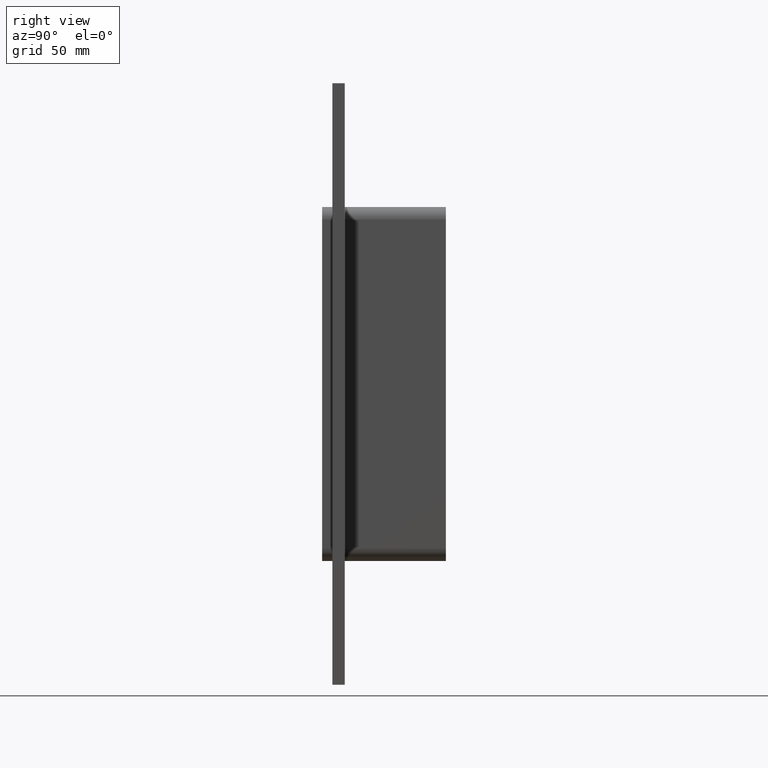
[diagram: clean part render]
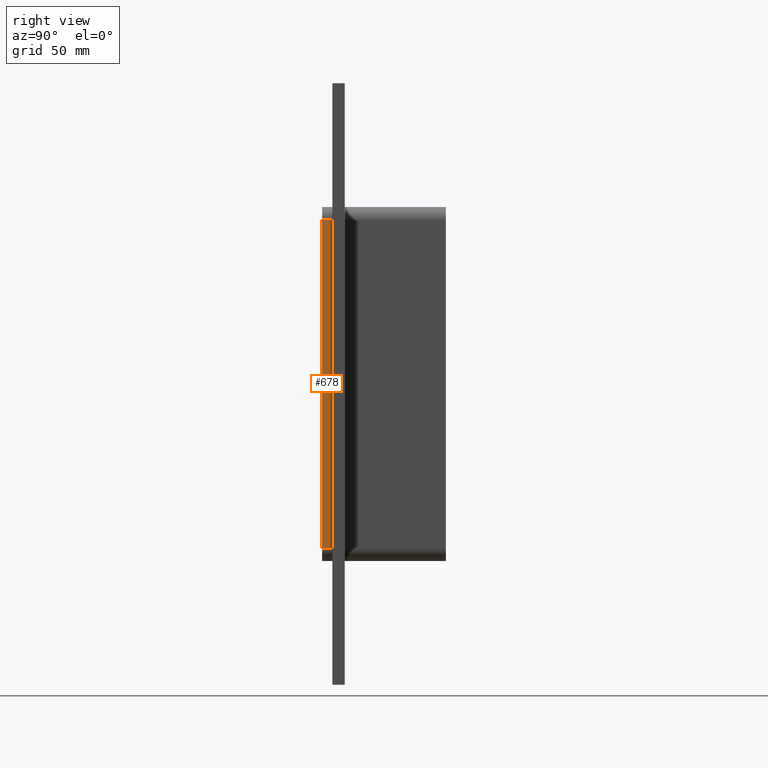
[diagram: same view with one face highlighted and labeled with its STEP entity id]
A machine part, right view. The second image highlights one B-rep face of the part: STEP entity #678.
In plain terms, the highlighted planar face has unit normal (1, 0, 0).
Its self-contained STEP definition (entity closure, byte-faithful):
#217=CARTESIAN_POINT('',(36.25,0.0,79.750000000000014));
#218=VERTEX_POINT('',#217);
#228=CARTESIAN_POINT('',(36.25,0.0,-79.750000000000057));
#229=VERTEX_POINT('',#228);
#230=CARTESIAN_POINT('',(36.25,0.0,-79.750000000000057));
#231=DIRECTION('',(0.0,0.0,1.0));
#232=VECTOR('',#231,159.50000000000006);
#233=LINE('',#230,#232);
#234=EDGE_CURVE('',#229,#218,#233,.T.);
#588=CARTESIAN_POINT('',(36.25,-5.0,-79.750000000000057));
#589=VERTEX_POINT('',#588);
#590=CARTESIAN_POINT('',(36.25,-5.0,-79.750000000000057));
#591=DIRECTION('',(0.0,1.0,0.0));
#592=VECTOR('',#591,5.0);
#593=LINE('',#590,#592);
#594=EDGE_CURVE('',#589,#229,#593,.T.);
#655=CARTESIAN_POINT('',(36.25,0.0,79.750000000000014));
#656=DIRECTION('',(1.0,0.0,0.0));
#657=DIRECTION('',(0.0,0.0,-1.0));
#658=AXIS2_PLACEMENT_3D('',#655,#656,#657);
#659=PLANE('',#658);
#660=ORIENTED_EDGE('',*,*,#234,.T.);
#661=CARTESIAN_POINT('',(36.25,-5.0,79.750000000000014));
#662=VERTEX_POINT('',#661);
#663=CARTESIAN_POINT('',(36.25,0.0,79.750000000000014));
#664=DIRECTION('',(0.0,-1.0,0.0));
#665=VECTOR('',#664,5.0);
#666=LINE('',#663,#665);
#667=EDGE_CURVE('',#218,#662,#666,.T.);
#668=ORIENTED_EDGE('',*,*,#667,.T.);
#669=CARTESIAN_POINT('',(36.25,-5.0,-79.750000000000043));
#670=DIRECTION('',(0.0,0.0,1.0));
#671=VECTOR('',#670,159.50000000000006);
#672=LINE('',#669,#671);
#673=EDGE_CURVE('',#589,#662,#672,.T.);
#674=ORIENTED_EDGE('',*,*,#673,.F.);
#675=ORIENTED_EDGE('',*,*,#594,.T.);
#676=EDGE_LOOP('',(#660,#668,#674,#675));
#677=FACE_OUTER_BOUND('',#676,.T.);
#678=ADVANCED_FACE('',(#677),#659,.T.);